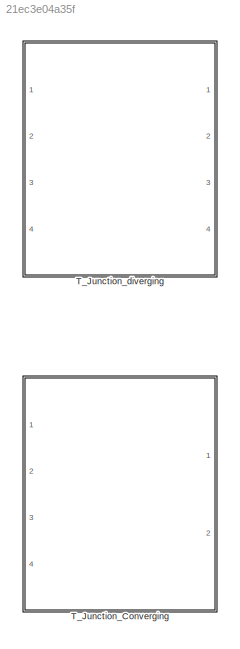
MODEL slx_21ec3e04a35f
KIND library
CONFIG AbsTol = auto
CONFIG EnableMultiTasking = off
CONFIG FixedStep = auto
CONFIG MaxStep = auto
CONFIG MinStep = auto
CONFIG RelTol = 1e-3
CONFIG SampleTimeConstraint = Unconstrained
CONFIG Solver = VariableStepAuto
CONFIG SolverName = VariableStepAuto
CONFIG StartTime = 0.0
CONFIG StopTime = 10.0
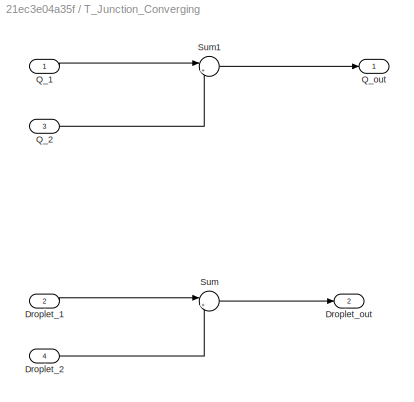
BLOCK [SubSystem] T_Junction_Converging
  Ports = [4, 2]
  RequestExecContextInheritance = off
BLOCK [Inport] T_Junction_Converging/Droplet_1
  IconDisplay = Port number
  Port = 2
BLOCK [Inport] T_Junction_Converging/Droplet_2
  IconDisplay = Port number
  Port = 4
BLOCK [Outport] T_Junction_Converging/Droplet_out
  IconDisplay = Port number
  Port = 2
BLOCK [Inport] T_Junction_Converging/Q_1
  IconDisplay = Port number
BLOCK [Inport] T_Junction_Converging/Q_2
  IconDisplay = Port number
  Port = 3
BLOCK [Outport] T_Junction_Converging/Q_out
  IconDisplay = Port number
BLOCK [Sum] T_Junction_Converging/Sum
  IconShape = round
  InputSameDT = off
  Inputs = |++
  OutDataTypeStr = Inherit: Inherit via internal rule
  Ports = [2, 1]
  SaturateOnIntegerOverflow = off
BLOCK [Sum] T_Junction_Converging/Sum1
  IconShape = round
  InputSameDT = off
  Inputs = |++
  OutDataTypeStr = Inherit: Inherit via internal rule
  Ports = [2, 1]
  SaturateOnIntegerOverflow = off
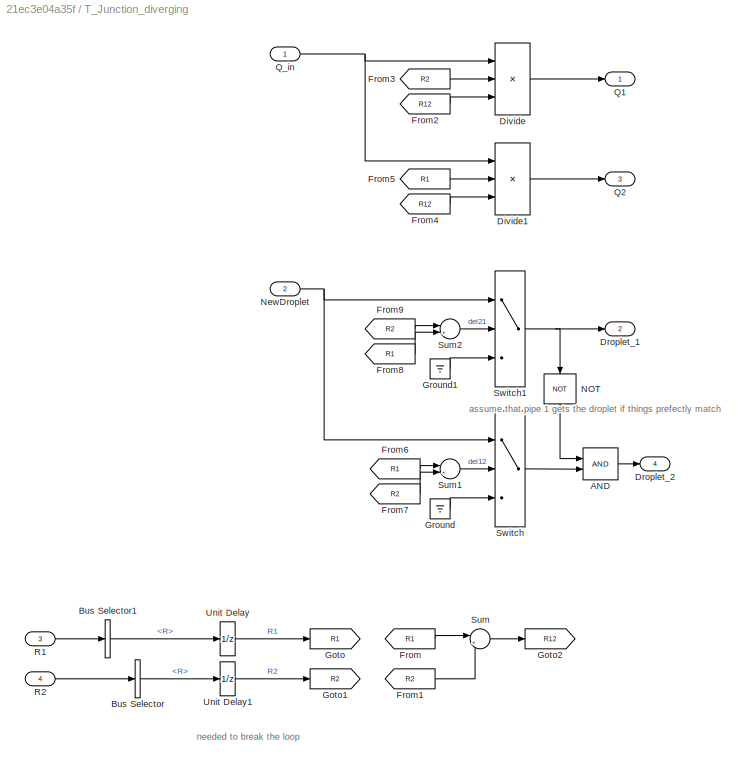
BLOCK [SubSystem] T_Junction_diverging
  Ports = [4, 4]
  RequestExecContextInheritance = off
BLOCK [Logic] T_Junction_diverging/AND
  AllPortsSameDT = off
  IconShape = distinctive
  OutDataTypeStr = boolean
  Ports = [2, 1]
BLOCK [BusSelector] T_Junction_diverging/Bus Selector
  OutputAsBus = off
  OutputSignals = R
  Ports = [1, 1]
BLOCK [BusSelector] T_Junction_diverging/Bus Selector1
  OutputAsBus = off
  OutputSignals = R
  Ports = [1, 1]
BLOCK [Product] T_Junction_diverging/Divide
  InputSameDT = off
  Inputs = **/
  OutDataTypeStr = Inherit: Inherit via internal rule
  Ports = [3, 1]
  RndMeth = Floor
  SaturateOnIntegerOverflow = off
BLOCK [Product] T_Junction_diverging/Divide1
  InputSameDT = off
  Inputs = **/
  OutDataTypeStr = Inherit: Inherit via internal rule
  Ports = [3, 1]
  RndMeth = Floor
  SaturateOnIntegerOverflow = off
BLOCK [Outport] T_Junction_diverging/Droplet_1
  IconDisplay = Port number
  Port = 2
BLOCK [Outport] T_Junction_diverging/Droplet_2
  IconDisplay = Port number
  Port = 4
BLOCK [From] T_Junction_diverging/From
  GotoTag = R1
BLOCK [From] T_Junction_diverging/From1
  GotoTag = R2
BLOCK [From] T_Junction_diverging/From2
  GotoTag = R12
BLOCK [From] T_Junction_diverging/From3
  GotoTag = R2
BLOCK [From] T_Junction_diverging/From4
  GotoTag = R12
BLOCK [From] T_Junction_diverging/From5
  GotoTag = R1
BLOCK [From] T_Junction_diverging/From6
  GotoTag = R1
BLOCK [From] T_Junction_diverging/From7
  GotoTag = R2
BLOCK [From] T_Junction_diverging/From8
  GotoTag = R1
BLOCK [From] T_Junction_diverging/From9
  GotoTag = R2
BLOCK [Goto] T_Junction_diverging/Goto
  GotoTag = R1
BLOCK [Goto] T_Junction_diverging/Goto1
  GotoTag = R2
BLOCK [Goto] T_Junction_diverging/Goto2
  GotoTag = R12
BLOCK [Ground] T_Junction_diverging/Ground
BLOCK [Ground] T_Junction_diverging/Ground1
BLOCK [Logic] T_Junction_diverging/NOT
  AllPortsSameDT = off
  IconShape = distinctive
  Operator = NOT
  OutDataTypeStr = boolean
  Ports = [1, 1]
BLOCK [Inport] T_Junction_diverging/NewDroplet
  IconDisplay = Port number
  Port = 2
BLOCK [Outport] T_Junction_diverging/Q1
  IconDisplay = Port number
BLOCK [Outport] T_Junction_diverging/Q2
  IconDisplay = Port number
  Port = 3
BLOCK [Inport] T_Junction_diverging/Q_in
  IconDisplay = Port number
BLOCK [Inport] T_Junction_diverging/R1
  IconDisplay = Port number
  Port = 3
BLOCK [Inport] T_Junction_diverging/R2
  IconDisplay = Port number
  Port = 4
BLOCK [Sum] T_Junction_diverging/Sum
  IconShape = round
  InputSameDT = off
  Inputs = |++
  OutDataTypeStr = Inherit: Inherit via internal rule
  Ports = [2, 1]
  SaturateOnIntegerOverflow = off
BLOCK [Sum] T_Junction_diverging/Sum1
  IconShape = round
  InputSameDT = off
  Inputs = |+-
  OutDataTypeStr = Inherit: Inherit via internal rule
  Ports = [2, 1]
  SaturateOnIntegerOverflow = off
BLOCK [Sum] T_Junction_diverging/Sum2
  IconShape = round
  InputSameDT = off
  Inputs = |+-
  OutDataTypeStr = Inherit: Inherit via internal rule
  Ports = [2, 1]
  SaturateOnIntegerOverflow = off
BLOCK [Switch] T_Junction_diverging/Switch
  InputSameDT = off
  SaturateOnIntegerOverflow = off
BLOCK [Switch] T_Junction_diverging/Switch1
  InputSameDT = off
  SaturateOnIntegerOverflow = off
BLOCK [UnitDelay] T_Junction_diverging/Unit Delay
  HasFrameUpgradeWarning = on
  SampleTime = -1
BLOCK [UnitDelay] T_Junction_diverging/Unit Delay1
  HasFrameUpgradeWarning = on
  SampleTime = -1
ANNOTATION T_Junction_diverging: assume that pipe 1 gets the droplet if things prefectly match
ANNOTATION T_Junction_diverging: needed to break the loop
LINE T_Junction_Converging/Droplet_1:1 -> T_Junction_Converging/Sum:1
LINE T_Junction_Converging/Droplet_2:1 -> T_Junction_Converging/Sum:2
LINE T_Junction_Converging/Q_1:1 -> T_Junction_Converging/Sum1:1
LINE T_Junction_Converging/Q_2:1 -> T_Junction_Converging/Sum1:2
LINE T_Junction_Converging/Sum1:1 -> T_Junction_Converging/Q_out:1
LINE T_Junction_Converging/Sum:1 -> T_Junction_Converging/Droplet_out:1
LINE T_Junction_diverging/AND:1 -> T_Junction_diverging/Droplet_2:1
LINE T_Junction_diverging/Bus Selector1:1 -> T_Junction_diverging/Unit Delay:1
LINE T_Junction_diverging/Bus Selector:1 -> T_Junction_diverging/Unit Delay1:1
LINE T_Junction_diverging/Divide1:1 -> T_Junction_diverging/Q2:1
LINE T_Junction_diverging/Divide:1 -> T_Junction_diverging/Q1:1
LINE T_Junction_diverging/From1:1 -> T_Junction_diverging/Sum:2
LINE T_Junction_diverging/From2:1 -> T_Junction_diverging/Divide:3
LINE T_Junction_diverging/From3:1 -> T_Junction_diverging/Divide:2
LINE T_Junction_diverging/From4:1 -> T_Junction_diverging/Divide1:3
LINE T_Junction_diverging/From5:1 -> T_Junction_diverging/Divide1:2
LINE T_Junction_diverging/From6:1 -> T_Junction_diverging/Sum1:1
LINE T_Junction_diverging/From7:1 -> T_Junction_diverging/Sum1:2
LINE T_Junction_diverging/From8:1 -> T_Junction_diverging/Sum2:2
LINE T_Junction_diverging/From9:1 -> T_Junction_diverging/Sum2:1
LINE T_Junction_diverging/From:1 -> T_Junction_diverging/Sum:1
LINE T_Junction_diverging/Ground1:1 -> T_Junction_diverging/Switch1:3
LINE T_Junction_diverging/Ground:1 -> T_Junction_diverging/Switch:3
LINE T_Junction_diverging/NOT:1 -> T_Junction_diverging/AND:1
NET T_Junction_diverging/NewDroplet:1 -> T_Junction_diverging/Switch1:1, T_Junction_diverging/Switch:1
NET T_Junction_diverging/Q_in:1 -> T_Junction_diverging/Divide1:1, T_Junction_diverging/Divide:1
LINE T_Junction_diverging/R1:1 -> T_Junction_diverging/Bus Selector1:1
LINE T_Junction_diverging/R2:1 -> T_Junction_diverging/Bus Selector:1
LINE T_Junction_diverging/Sum1:1 -> T_Junction_diverging/Switch:2
LINE T_Junction_diverging/Sum2:1 -> T_Junction_diverging/Switch1:2
LINE T_Junction_diverging/Sum:1 -> T_Junction_diverging/Goto2:1
NET T_Junction_diverging/Switch1:1 -> T_Junction_diverging/Droplet_1:1, T_Junction_diverging/NOT:1
LINE T_Junction_diverging/Switch:1 -> T_Junction_diverging/AND:2
LINE T_Junction_diverging/Unit Delay1:1 -> T_Junction_diverging/Goto1:1
LINE T_Junction_diverging/Unit Delay:1 -> T_Junction_diverging/Goto:1
note: NET lines group one-source signal fan-out (src -> all destinations, sorted); 1:1 wires keep LINE
